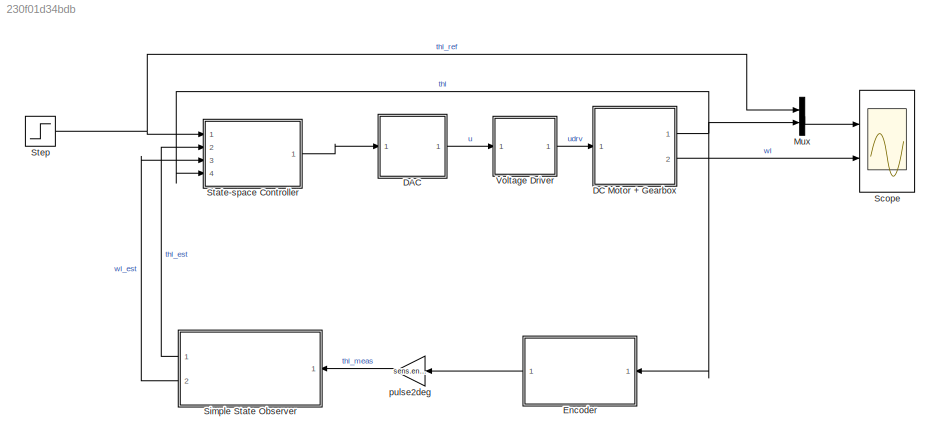
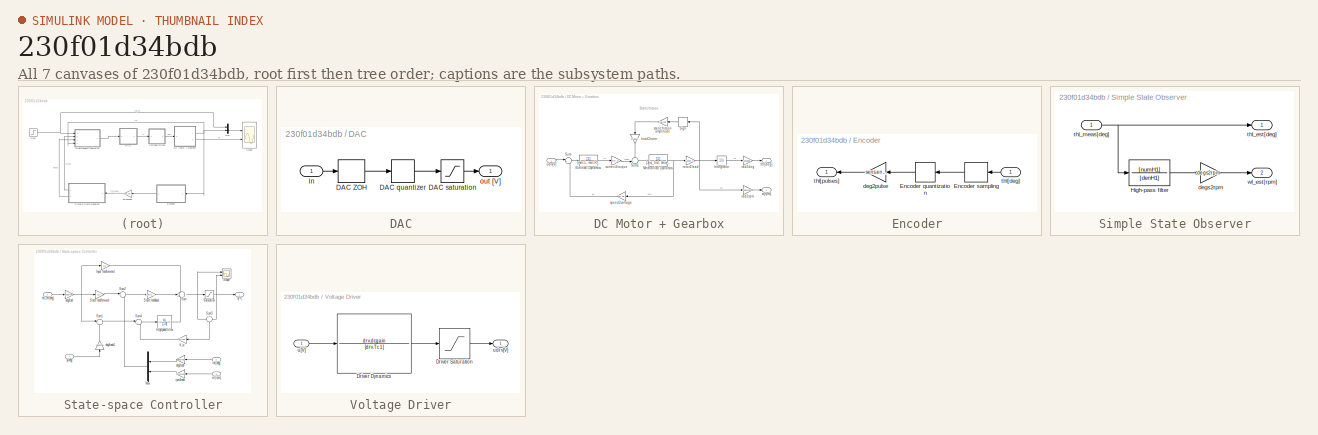
[diagram: thumbnail index - all 7 canvases of the model, root first then tree order]
MODEL slx_230f01d34bdb
KIND model
CONFIG AbsTol = auto
CONFIG EnableMultiTasking = off
CONFIG FixedStep = auto
CONFIG MaxStep = auto
CONFIG MinStep = auto
CONFIG RelTol = 1e-3
CONFIG SampleTimeConstraint = Unconstrained
CONFIG SolverName = ode45
CONFIG StartTime = 0.0
CONFIG StopTime = 5
BLOCK [SubSystem] DAC
  Ports = [1, 1]
  RequestExecContextInheritance = off
BLOCK [ZeroOrderHold] DAC/DAC ZOH
  SampleTime = 0.001
BLOCK [Quantizer] DAC/DAC quantizer
  QuantizationInterval = daq.dac.q
BLOCK [Saturate] DAC/DAC saturation
  LowerLimit = -daq.dac.fs
  UpperLimit = daq.dac.fs
BLOCK [Inport] DAC/In
BLOCK [Outport] DAC/out [V]
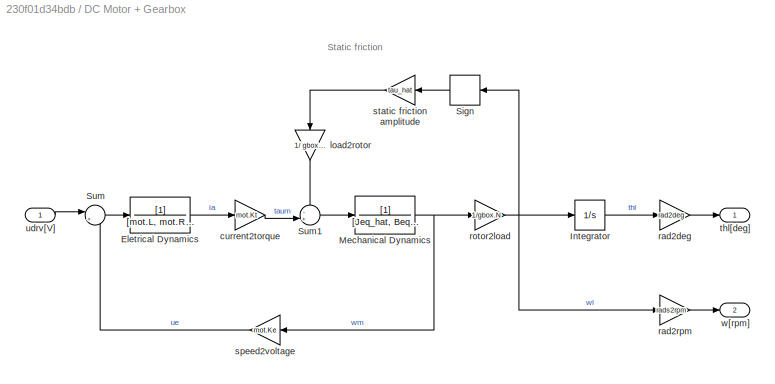
BLOCK [SubSystem] DC Motor + Gearbox
  Ports = [1, 2]
  RequestExecContextInheritance = off
BLOCK [TransferFcn] DC Motor + Gearbox/Eletrical Dynamics
  Denominator = [mot.L, mot.R+sens.curr.Rs]
BLOCK [Integrator] DC Motor + Gearbox/Integrator
  Ports = [1, 1]
BLOCK [TransferFcn] DC Motor + Gearbox/Mechanical Dynamics
  Denominator = [Jeq_hat, Beq_hat]
BLOCK [Signum] DC Motor + Gearbox/Sign
  ZeroCross = off
BLOCK [Sum] DC Motor + Gearbox/Sum
  Inputs = |+-
  Ports = [2, 1]
BLOCK [Sum] DC Motor + Gearbox/Sum1
  Inputs = -+|
  Ports = [2, 1]
BLOCK [Gain] DC Motor + Gearbox/current2torque
  Gain = mot.Kt
BLOCK [Gain] DC Motor + Gearbox/load2rotor
  Gain = 1/ gbox.N
  NameLocation = left
BLOCK [Gain] DC Motor + Gearbox/rad2deg
  Gain = rad2deg
BLOCK [Gain] DC Motor + Gearbox/rad2rpm 
  Gain = rads2rpm
BLOCK [Gain] DC Motor + Gearbox/rotor2load
  Gain = 1/gbox.N
BLOCK [Gain] DC Motor + Gearbox/speed2voltage
  Gain = mot.Ke
BLOCK [Gain] DC Motor + Gearbox/static friction amplitude
  Gain = tau_hat
BLOCK [Outport] DC Motor + Gearbox/thl[deg]
  VectorParamsAs1DForOutWhenUnconnected = off
BLOCK [Inport] DC Motor + Gearbox/udrv[V]
BLOCK [Outport] DC Motor + Gearbox/w[rpm]
  Port = 2
  VectorParamsAs1DForOutWhenUnconnected = off
BLOCK [SubSystem] Encoder
  Ports = [1, 1]
  RequestExecContextInheritance = off
BLOCK [Quantizer] Encoder/Encoder quantization
  QuantizationInterval = sens.enc.pulse2deg
BLOCK [ZeroOrderHold] Encoder/Encoder sampling
  SampleTime = -1
BLOCK [Gain] Encoder/deg2pulse
  Gain = sens.enc.deg2pulse
BLOCK [Inport] Encoder/thl[deg]
BLOCK [Outport] Encoder/thl[pulses]
BLOCK [Mux] Mux
  DisplayOption = bar
  Inputs = 2
  Ports = [2, 1]
BLOCK [Scope] Scope
  Floating = off
  NumInputPorts = 2
  Ports = [2]
  ScopeSpecificationString = Simulink.scopes.TimeScopeBlockCfg('CurrentConfiguration', extmgr.ConfigurationSet(extmgr.Configuration('Core','General UI',true),extmgr.Configuration('Core','Source UI',true),extmgr.Configuration('Sources','WiredSimulink',true,'DataLogging',true,'DataLoggingVariableName','MotorData','DataLoggingSaveFormat','StructureWithTime'),extmgr.Configuration('Visuals','Time Domain',true,'SerializedDisplays',...<+2109ch>
BLOCK [SubSystem] Simple State Observer
  Ports = [1, 2]
  RequestExecContextInheritance = off
BLOCK [TransferFcn] Simple State Observer/High-pass filter
  Denominator = [denH1]
  Numerator = [numH1]
BLOCK [Gain] Simple State Observer/degs2rpm
  Gain = degs2rpm
BLOCK [Outport] Simple State Observer/thl_est[deg]
BLOCK [Inport] Simple State Observer/thl_meas[deg]
BLOCK [Outport] Simple State Observer/wl_est[rpm]
  Port = 2
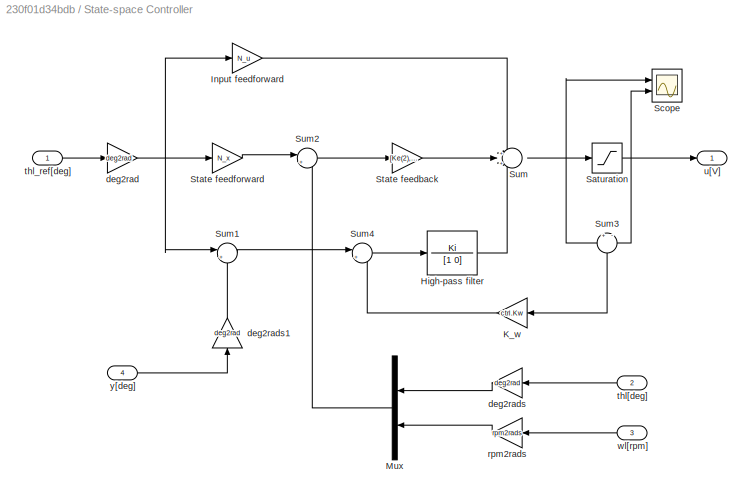
BLOCK [SubSystem] State-space Controller
  Ports = [4, 1]
  RequestExecContextInheritance = off
BLOCK [TransferFcn] State-space Controller/High-pass filter
  Denominator = [1 0]
  Numerator = Ki
BLOCK [Gain] State-space Controller/Input feedforward
  Gain = N_u
BLOCK [Gain] State-space Controller/K_w
  Gain = ctrl.Kw
BLOCK [Mux] State-space Controller/Mux
  DisplayOption = bar
  Inputs = 2
  Ports = [2, 1]
BLOCK [Saturate] State-space Controller/Saturation
  LowerLimit = -10
  UpperLimit = 10
BLOCK [Scope] State-space Controller/Scope
  Floating = off
  NumInputPorts = 2
  Ports = [2]
  ScopeSpecificationString = Simulink.scopes.TimeScopeBlockCfg('CurrentConfiguration', extmgr.ConfigurationSet(extmgr.Configuration('Core','General UI',true),extmgr.Configuration('Core','Source UI',true),extmgr.Configuration('Sources','WiredSimulink',true,'DataLoggingVariableName','ControllerData','DataLogging',true,'DataLoggingSaveFormat','StructureWithTime'),extmgr.Configuration('Visuals','Time Domain',true,'SerializedDispl...<+2064ch>
BLOCK [Gain] State-space Controller/State feedback
  Gain = [Ke(2),Ke(3)].'
  Multiplication = Matrix(u*K)
BLOCK [Gain] State-space Controller/State feedforward	
  Gain = N_x
  Multiplication = Matrix(u*K)
BLOCK [Sum] State-space Controller/Sum
  Inputs = +|+|+
  Ports = [3, 1]
BLOCK [Sum] State-space Controller/Sum1
  Inputs = |+-
  Ports = [2, 1]
BLOCK [Sum] State-space Controller/Sum2
  Inputs = |+-
  Ports = [2, 1]
BLOCK [Sum] State-space Controller/Sum3
  Inputs = +|-
  NameLocation = left
  Ports = [2, 1]
BLOCK [Sum] State-space Controller/Sum4
  Inputs = |+-
  Ports = [2, 1]
BLOCK [Gain] State-space Controller/deg2rad
  Gain = deg2rad
BLOCK [Gain] State-space Controller/deg2rads
  Gain = deg2rad
  NameLocation = top
BLOCK [Gain] State-space Controller/deg2rads1
  Gain = deg2rad
  NameLocation = right
BLOCK [Gain] State-space Controller/rpm2rads
  Gain = rpm2rads
BLOCK [Inport] State-space Controller/thl[deg]
  Port = 2
BLOCK [Inport] State-space Controller/thl_ref[deg]
BLOCK [Outport] State-space Controller/u[V]
BLOCK [Inport] State-space Controller/wl[rpm]
  Port = 3
BLOCK [Inport] State-space Controller/y[deg]
  NameLocation = top
  Port = 4
BLOCK [Step] Step
  After = step_size
  SampleTime = 0
BLOCK [SubSystem] Voltage Driver
  Ports = [1, 1]
  RequestExecContextInheritance = off
BLOCK [TransferFcn] Voltage Driver/Driver Dynamics
  Denominator = [drv.Tc 1]
  Numerator = drv.dcgain
BLOCK [Saturate] Voltage Driver/Driver Saturation
  LowerLimit = -12
  UpperLimit = 12
BLOCK [Inport] Voltage Driver/u[V]
BLOCK [Outport] Voltage Driver/udrv[V]
BLOCK [Gain] pulse2deg
  Gain = sens.enc.pulse2deg
ANNOTATION DC Motor + Gearbox: Static friction
LINE DAC/DAC ZOH:1 -> DAC/DAC quantizer:1
LINE DAC/DAC quantizer:1 -> DAC/DAC saturation:1
LINE DAC/DAC saturation:1 -> DAC/out [V]:1
LINE DAC/In:1 -> DAC/DAC ZOH:1
LINE DAC:1 -> Voltage Driver:1
LINE DC Motor + Gearbox/Eletrical Dynamics:1 -> DC Motor + Gearbox/current2torque:1
LINE DC Motor + Gearbox/Integrator:1 -> DC Motor + Gearbox/rad2deg:1
NET DC Motor + Gearbox/Mechanical Dynamics:1 -> DC Motor + Gearbox/rotor2load:1, DC Motor + Gearbox/speed2voltage:1
LINE DC Motor + Gearbox/Sign:1 -> DC Motor + Gearbox/static friction amplitude:1
LINE DC Motor + Gearbox/Sum1:1 -> DC Motor + Gearbox/Mechanical Dynamics:1
LINE DC Motor + Gearbox/Sum:1 -> DC Motor + Gearbox/Eletrical Dynamics:1
LINE DC Motor + Gearbox/current2torque:1 -> DC Motor + Gearbox/Sum1:2
LINE DC Motor + Gearbox/load2rotor:1 -> DC Motor + Gearbox/Sum1:1
LINE DC Motor + Gearbox/rad2deg:1 -> DC Motor + Gearbox/thl[deg]:1
LINE DC Motor + Gearbox/rad2rpm :1 -> DC Motor + Gearbox/w[rpm]:1
NET DC Motor + Gearbox/rotor2load:1 -> DC Motor + Gearbox/Integrator:1, DC Motor + Gearbox/Sign:1, DC Motor + Gearbox/rad2rpm :1
LINE DC Motor + Gearbox/speed2voltage:1 -> DC Motor + Gearbox/Sum:2
LINE DC Motor + Gearbox/static friction amplitude:1 -> DC Motor + Gearbox/load2rotor:1
LINE DC Motor + Gearbox/udrv[V]:1 -> DC Motor + Gearbox/Sum:1
NET DC Motor + Gearbox:1 -> Encoder:1, Mux:2, State-space Controller:4
LINE DC Motor + Gearbox:2 -> Scope:2
LINE Encoder/Encoder quantization:1 -> Encoder/deg2pulse:1
LINE Encoder/Encoder sampling:1 -> Encoder/Encoder quantization:1
LINE Encoder/deg2pulse:1 -> Encoder/thl[pulses]:1
LINE Encoder/thl[deg]:1 -> Encoder/Encoder sampling:1
LINE Encoder:1 -> pulse2deg:1
LINE Mux:1 -> Scope:1
LINE Simple State Observer/High-pass filter:1 -> Simple State Observer/degs2rpm:1
LINE Simple State Observer/degs2rpm:1 -> Simple State Observer/wl_est[rpm]:1
NET Simple State Observer/thl_meas[deg]:1 -> Simple State Observer/High-pass filter:1, Simple State Observer/thl_est[deg]:1
LINE Simple State Observer:1 -> State-space Controller:2
LINE Simple State Observer:2 -> State-space Controller:3
LINE State-space Controller/High-pass filter:1 -> State-space Controller/Sum:3
LINE State-space Controller/Input feedforward:1 -> State-space Controller/Sum:1
LINE State-space Controller/K_w:1 -> State-space Controller/Sum4:2
LINE State-space Controller/Mux:1 -> State-space Controller/Sum2:2
NET State-space Controller/Saturation:1 -> State-space Controller/Scope:2, State-space Controller/Sum3:2, State-space Controller/u[V]:1
LINE State-space Controller/State feedback:1 -> State-space Controller/Sum:2
LINE State-space Controller/State feedforward	:1 -> State-space Controller/Sum2:1
LINE State-space Controller/Sum1:1 -> State-space Controller/Sum4:1
LINE State-space Controller/Sum2:1 -> State-space Controller/State feedback:1
LINE State-space Controller/Sum3:1 -> State-space Controller/K_w:1
LINE State-space Controller/Sum4:1 -> State-space Controller/High-pass filter:1
NET State-space Controller/Sum:1 -> State-space Controller/Saturation:1, State-space Controller/Scope:1, State-space Controller/Sum3:1
NET State-space Controller/deg2rad:1 -> State-space Controller/Input feedforward:1, State-space Controller/State feedforward	:1, State-space Controller/Sum1:1
LINE State-space Controller/deg2rads1:1 -> State-space Controller/Sum1:2
LINE State-space Controller/deg2rads:1 -> State-space Controller/Mux:1
LINE State-space Controller/rpm2rads:1 -> State-space Controller/Mux:2
LINE State-space Controller/thl[deg]:1 -> State-space Controller/deg2rads:1
LINE State-space Controller/thl_ref[deg]:1 -> State-space Controller/deg2rad:1
LINE State-space Controller/wl[rpm]:1 -> State-space Controller/rpm2rads:1
LINE State-space Controller/y[deg]:1 -> State-space Controller/deg2rads1:1
LINE State-space Controller:1 -> DAC:1
NET Step:1 -> Mux:1, State-space Controller:1
LINE Voltage Driver/Driver Dynamics:1 -> Voltage Driver/Driver Saturation:1
LINE Voltage Driver/Driver Saturation:1 -> Voltage Driver/udrv[V]:1
LINE Voltage Driver/u[V]:1 -> Voltage Driver/Driver Dynamics:1
LINE Voltage Driver:1 -> DC Motor + Gearbox:1
LINE pulse2deg:1 -> Simple State Observer:1
note: NET lines group one-source signal fan-out (src -> all destinations, sorted); 1:1 wires keep LINE
